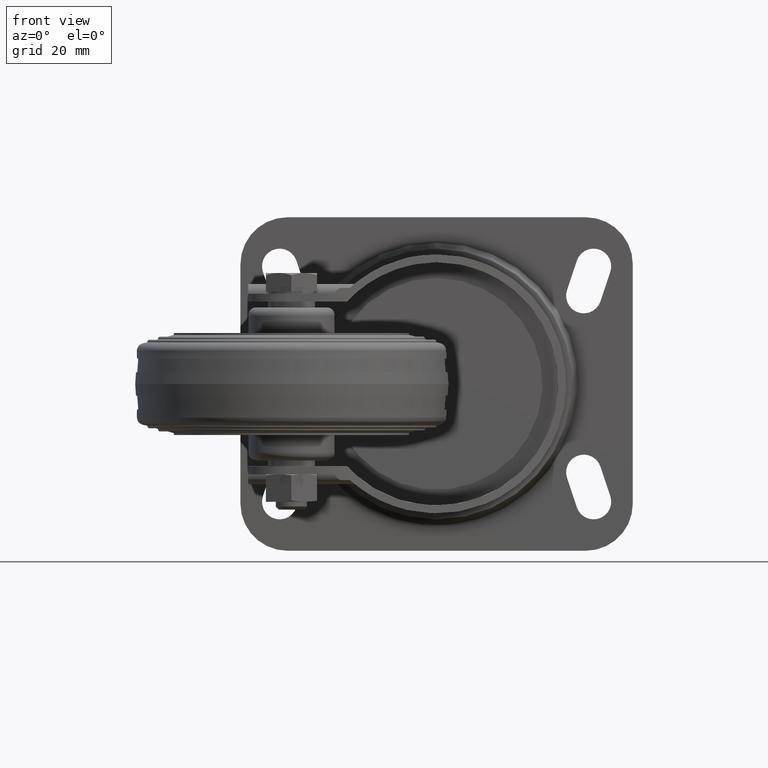
[diagram: clean part render]
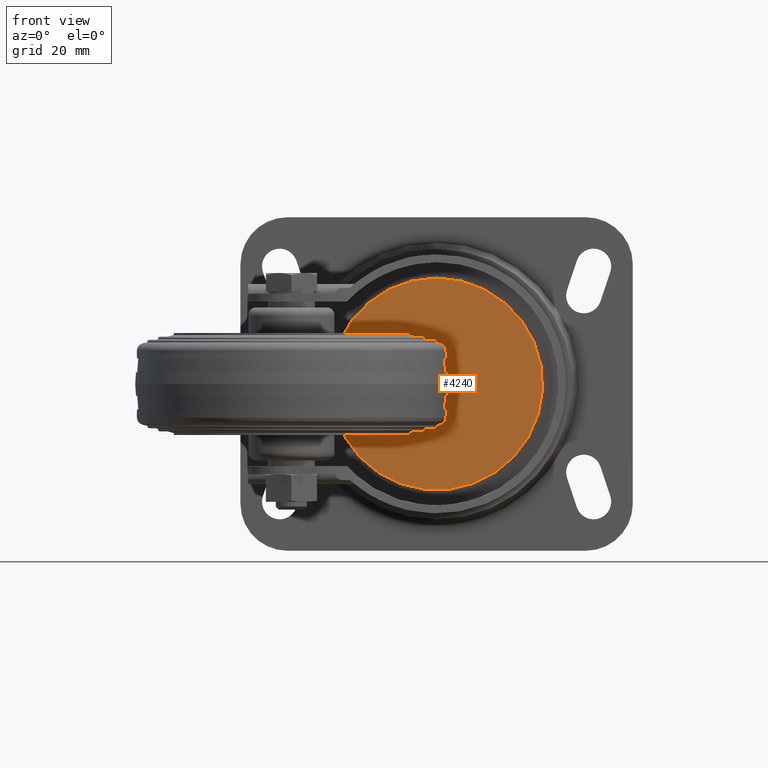
[diagram: same view with one face highlighted and labeled with its STEP entity id]
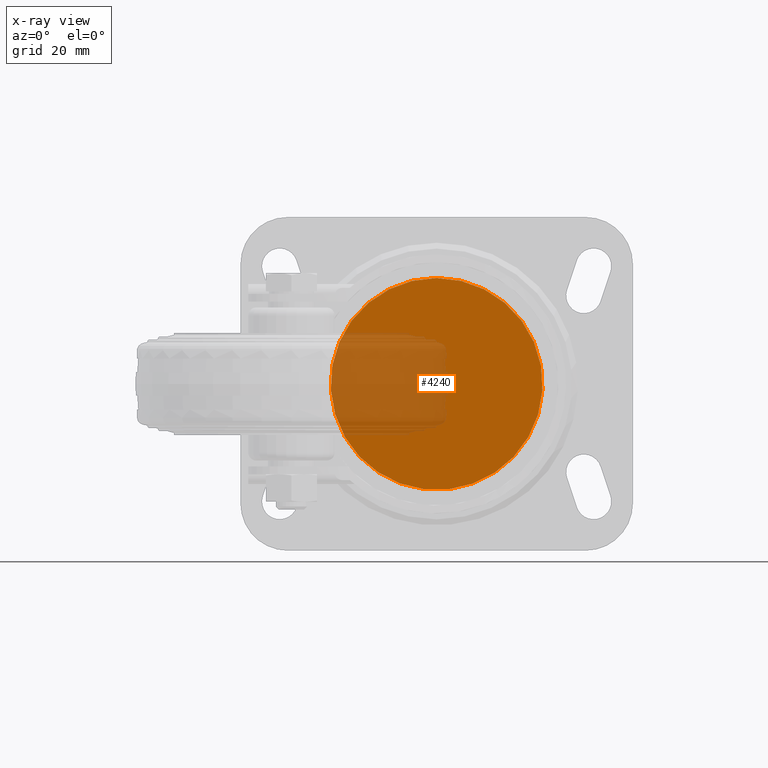
[diagram: x-ray of the same camera — body ghosted, the highlighted face saturated]
A machine part, front view. The second image highlights one B-rep face of the part: STEP entity #4240.
The next image is the same camera in x-ray: the body ghosted, the highlighted face saturated — about 31% of this face is hidden behind the body in this view.
In plain terms, the highlighted planar face has unit normal (0, 1, 0).
Its self-contained STEP definition (entity closure, byte-faithful):
#424=CIRCLE('',#4617,27.);
#650=FACE_OUTER_BOUND('',#991,.T.);
#991=EDGE_LOOP('',(#3338));
#2074=VERTEX_POINT('',#6914);
#2550=EDGE_CURVE('',#2074,#2074,#424,.T.);
#3338=ORIENTED_EDGE('',*,*,#2550,.F.);
#4032=PLANE('',#4618);
#4240=ADVANCED_FACE('',(#650),#4032,.F.);
#4617=AXIS2_PLACEMENT_3D('',#6915,#5518,#5519);
#4618=AXIS2_PLACEMENT_3D('',#6916,#5520,#5521);
#5518=DIRECTION('center_axis',(0.,1.,0.));
#5519=DIRECTION('ref_axis',(0.,0.,1.));
#5520=DIRECTION('center_axis',(0.,1.,0.));
#5521=DIRECTION('ref_axis',(0.,0.,1.));
#6914=CARTESIAN_POINT('',(37.,48.5,27.));
#6915=CARTESIAN_POINT('Origin',(37.,48.5,0.));
#6916=CARTESIAN_POINT('Origin',(37.,48.5,0.));